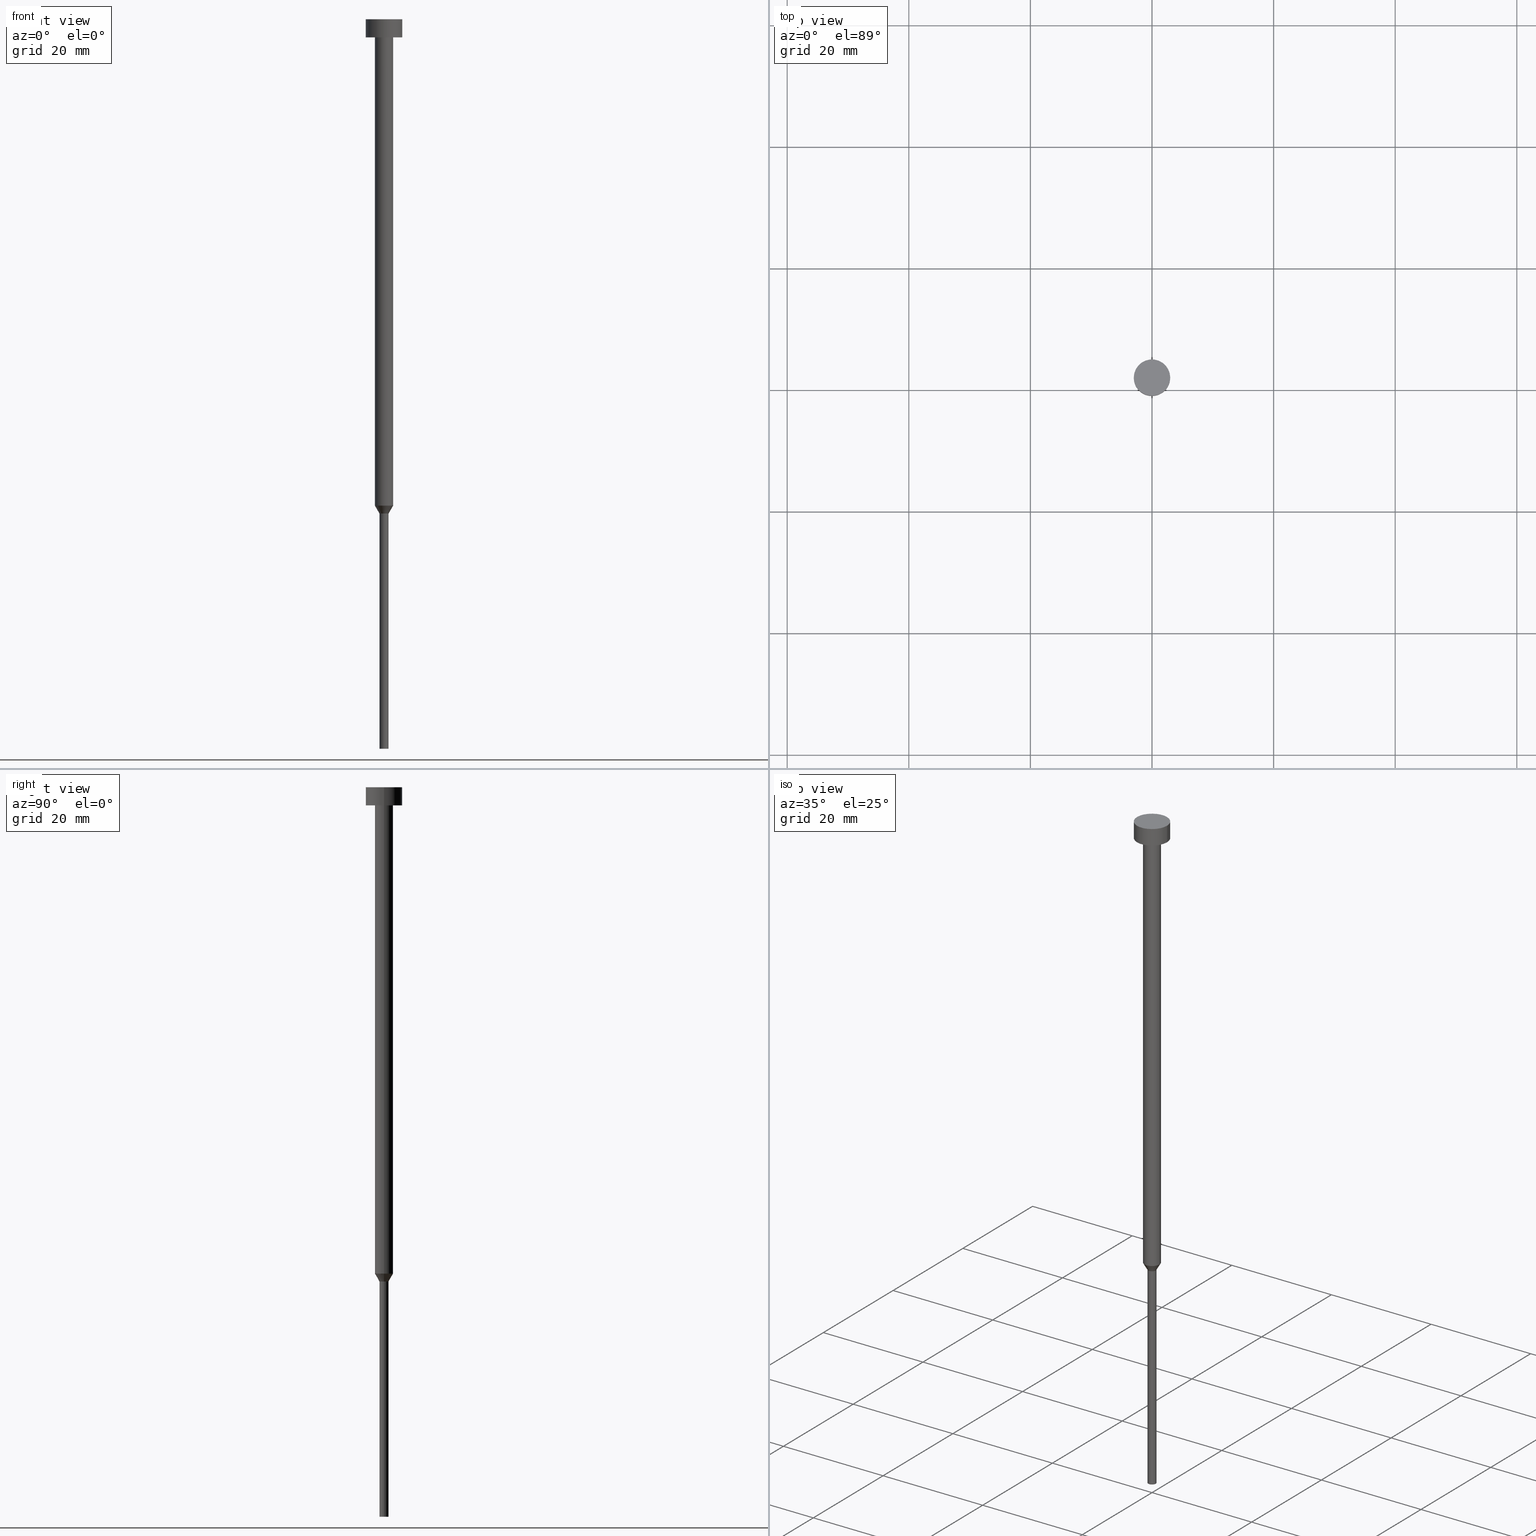
[diagram: canonical four-view strip — front | top / right | iso, engineering-drawing reading convention]
A machine part, canonical four-view strip (front | top / right | iso — engineering-drawing reading convention). The complete STEP part file that produces these views, byte-faithful:
ISO-10303-21;
HEADER;
FILE_DESCRIPTION (( 'STEP AP203' ),
    '1' );
FILE_NAME ('1d42.STEP',
    '2023-02-13T08:57:54',
    ( '' ),
    ( '' ),
    'SwSTEP 2.0',
    'SolidWorks 2019',
    '' );
FILE_SCHEMA (( 'CONFIG_CONTROL_DESIGN' ));
ENDSEC;

DATA;
#1 = CARTESIAN_POINT ( 'NONE',  ( 0.000000000000000000, 0.000000000000000000, -3.000000000000000444 ) ) ;
#2 = LINE ( 'NONE', #35, #24 ) ;
#3 = VERTEX_POINT ( 'NONE', #223 ) ;
#4 = SECURITY_CLASSIFICATION_LEVEL ( 'unclassified' ) ;
#5 = APPROVAL_ROLE ( '' ) ;
#6 = APPROVAL ( #274, 'NEUR�EN�' ) ;
#7 = ORIENTED_EDGE ( 'NONE', *, *, #354, .F. ) ;
#8 = DIRECTION ( 'NONE',  ( 1.000000000000000000, 0.000000000000000000, 0.000000000000000000 ) ) ;
#9 = CC_DESIGN_PERSON_AND_ORGANIZATION_ASSIGNMENT ( #13, #241, ( #173 ) ) ;
#10 = DATE_TIME_ROLE ( 'classification_date' ) ;
#11 = AXIS2_PLACEMENT_3D ( 'NONE', #31, #257, #231 ) ;
#12 = CARTESIAN_POINT ( 'NONE',  ( 3.000000000000000000, 0.000000000000000000, -3.000000000000000444 ) ) ;
#13 = PERSON_AND_ORGANIZATION ( #26, #205 ) ;
#14 = CARTESIAN_POINT ( 'NONE',  ( -1.500000000000000000, 1.836970198721029934E-16, -80.00000000000000000 ) ) ;
#15 = CIRCLE ( 'NONE', #55, 0.7500000000000000000 ) ;
#16 = ORIENTED_EDGE ( 'NONE', *, *, #131, .F. ) ;
#17 = ADVANCED_FACE ( 'NONE', ( #74, #189 ), #302, .T. ) ;
#18 = LOCAL_TIME ( 9, 57, 54.00000000000000000, #129 ) ;
#19 = APPROVAL_ROLE ( '' ) ;
#20 = EDGE_LOOP ( 'NONE', ( #216, #342, #344, #272 ) ) ;
#21 = SHAPE_DEFINITION_REPRESENTATION ( #229, #38 ) ;
#22 = EDGE_LOOP ( 'NONE', ( #348, #291, #244, #162 ) ) ;
#23 = ORIENTED_EDGE ( 'NONE', *, *, #301, .F. ) ;
#24 = VECTOR ( 'NONE', #176, 1000.000000000000000 ) ;
#25 = ORIENTED_EDGE ( 'NONE', *, *, #99, .F. ) ;
#26 = PERSON ( 'NEUR�EN�', 'NEUR�EN�', 'NEUR�EN�', ('NEUR�EN�'), ('NEUR�EN�'), ('NEUR�EN�') ) ;
#27 = AXIS2_PLACEMENT_3D ( 'NONE', #165, #278, #305 ) ;
#28 = ADVANCED_FACE ( 'NONE', ( #243 ), #52, .T. ) ;
#29 = PERSON_AND_ORGANIZATION ( #26, #205 ) ;
#30 = DIRECTION ( 'NONE',  ( 1.000000000000000000, 0.000000000000000000, 0.000000000000000000 ) ) ;
#31 = CARTESIAN_POINT ( 'NONE',  ( 0.000000000000000000, 0.000000000000000000, -120.0000000000000000 ) ) ;
#32 = AXIS2_PLACEMENT_3D ( 'NONE', #214, #121, #95 ) ;
#33 = CARTESIAN_POINT ( 'NONE',  ( -0.7500000000000000000, 9.184850993605149670E-17, -81.29903810567665801 ) ) ;
#34 = CIRCLE ( 'NONE', #112, 3.000000000000000000 ) ;
#35 = CARTESIAN_POINT ( 'NONE',  ( -3.000000000000000000, 3.673940397442059868E-16, 0.000000000000000000 ) ) ;
#36 = FACE_OUTER_BOUND ( 'NONE', #252, .T. ) ;
#37 = CARTESIAN_POINT ( 'NONE',  ( 0.000000000000000000, -3.000000000000000000, -3.000000000000000444 ) ) ;
#38 = ADVANCED_BREP_SHAPE_REPRESENTATION ( '1d42', ( #79, #41 ), #158 ) ;
#39 = DIRECTION ( 'NONE',  ( -0.000000000000000000, -0.000000000000000000, 1.000000000000000000 ) ) ;
#40 = CIRCLE ( 'NONE', #182, 1.500000000000000000 ) ;
#41 = AXIS2_PLACEMENT_3D ( 'NONE', #235, #115, #203 ) ;
#42 = PERSON_AND_ORGANIZATION ( #26, #205 ) ;
#43 = CARTESIAN_POINT ( 'NONE',  ( 1.500000000000000000, 0.000000000000000000, 0.000000000000000000 ) ) ;
#44 = APPROVAL_STATUS ( 'not_yet_approved' ) ;
#45 = ORIENTED_EDGE ( 'NONE', *, *, #191, .F. ) ;
#46 = CLOSED_SHELL ( 'NONE', ( #271, #28, #353, #202, #75, #125, #49, #213, #17, #53, #199 ) ) ;
#47 = DATE_TIME_ROLE ( 'creation_date' ) ;
#48 = PLANE ( 'NONE',  #27 ) ;
#49 = ADVANCED_FACE ( 'NONE', ( #139 ), #282, .T. ) ;
#50 = FACE_OUTER_BOUND ( 'NONE', #178, .T. ) ;
#51 = CONICAL_SURFACE ( 'NONE', #289, 1.500000000000000000, 0.5235987755983013692 ) ;
#52 = CYLINDRICAL_SURFACE ( 'NONE', #92, 1.500000000000000000 ) ;
#53 = ADVANCED_FACE ( 'NONE', ( #50 ), #78, .T. ) ;
#54 = DIRECTION ( 'NONE',  ( 1.000000000000000000, 0.000000000000000000, 0.000000000000000000 ) ) ;
#55 = AXIS2_PLACEMENT_3D ( 'NONE', #350, #349, #54 ) ;
#56 = PRODUCT_RELATED_PRODUCT_CATEGORY ( 'detail', '', ( #173 ) ) ;
#57 =( NAMED_UNIT ( * ) SI_UNIT ( $, .STERADIAN. ) SOLID_ANGLE_UNIT ( ) );
#58 = APPLICATION_PROTOCOL_DEFINITION ( 'international standard', 'config_control_design', 1994, #194 ) ;
#59 = CARTESIAN_POINT ( 'NONE',  ( 0.000000000000000000, 0.000000000000000000, 0.000000000000000000 ) ) ;
#60 = APPROVAL_DATE_TIME ( #319, #280 ) ;
#61 = DIRECTION ( 'NONE',  ( 1.000000000000000000, 0.000000000000000000, 0.000000000000000000 ) ) ;
#62 = CC_DESIGN_DATE_AND_TIME_ASSIGNMENT ( #303, #47, ( #308 ) ) ;
#63 = DIRECTION ( 'NONE',  ( -0.000000000000000000, -0.000000000000000000, 1.000000000000000000 ) ) ;
#64 = AXIS2_PLACEMENT_3D ( 'NONE', #179, #39, #71 ) ;
#65 = CYLINDRICAL_SURFACE ( 'NONE', #134, 3.000000000000000000 ) ;
#66 = DIRECTION ( 'NONE',  ( 1.000000000000000000, 0.000000000000000000, 0.000000000000000000 ) ) ;
#67 = DIRECTION ( 'NONE',  ( -0.000000000000000000, -0.000000000000000000, 1.000000000000000000 ) ) ;
#68 = EDGE_LOOP ( 'NONE', ( #126, #7 ) ) ;
#69 = CIRCLE ( 'NONE', #163, 0.7500000000000000000 ) ;
#70 = LOCAL_TIME ( 9, 57, 54.00000000000000000, #160 ) ;
#71 = DIRECTION ( 'NONE',  ( 1.000000000000000000, 0.000000000000000000, 0.000000000000000000 ) ) ;
#72 = CALENDAR_DATE ( 2023, 13, 2 ) ;
#73 = VERTEX_POINT ( 'NONE', #33 ) ;
#74 = FACE_BOUND ( 'NONE', #183, .T. ) ;
#75 = ADVANCED_FACE ( 'NONE', ( #169 ), #119, .T. ) ;
#76 = ORIENTED_EDGE ( 'NONE', *, *, #191, .T. ) ;
#77 = DIRECTION ( 'NONE',  ( -0.000000000000000000, -0.000000000000000000, 1.000000000000000000 ) ) ;
#78 = CYLINDRICAL_SURFACE ( 'NONE', #225, 3.000000000000000000 ) ;
#79 = MANIFOLD_SOLID_BREP ( 'Rotovat1', #46 ) ;
#80 = VECTOR ( 'NONE', #180, 1000.000000000000000 ) ;
#81 = CARTESIAN_POINT ( 'NONE',  ( 0.000000000000000000, 0.000000000000000000, -3.673940397442059868E-16 ) ) ;
#82 = EDGE_CURVE ( 'NONE', #246, #215, #312, .T. ) ;
#83 = LINE ( 'NONE', #233, #314 ) ;
#84 = AXIS2_PLACEMENT_3D ( 'NONE', #37, #155, #124 ) ;
#85 = LINE ( 'NONE', #266, #220 ) ;
#86 = AXIS2_PLACEMENT_3D ( 'NONE', #59, #261, #61 ) ;
#87 = APPLICATION_PROTOCOL_DEFINITION ( 'international standard', 'config_control_design', 1994, #200 ) ;
#88 = EDGE_CURVE ( 'NONE', #147, #101, #320, .T. ) ;
#89 = COORDINATED_UNIVERSAL_TIME_OFFSET ( 1, 0, .AHEAD. ) ;
#90 = APPROVAL ( #262, 'NEUR�EN�' ) ;
#91 = CARTESIAN_POINT ( 'NONE',  ( 1.500000000000000000, 0.000000000000000000, -80.00000000000000000 ) ) ;
#92 = AXIS2_PLACEMENT_3D ( 'NONE', #111, #168, #255 ) ;
#93 = DIRECTION ( 'NONE',  ( 1.000000000000000000, 0.000000000000000000, 0.000000000000000000 ) ) ;
#94 = AXIS2_PLACEMENT_3D ( 'NONE', #123, #242, #181 ) ;
#95 = DIRECTION ( 'NONE',  ( 1.000000000000000000, 0.000000000000000000, 0.000000000000000000 ) ) ;
#96 = CYLINDRICAL_SURFACE ( 'NONE', #296, 0.7500000000000000000 ) ;
#97 = UNCERTAINTY_MEASURE_WITH_UNIT (LENGTH_MEASURE( 1.000000000000000082E-05 ), #299, 'distance_accuracy_value', 'NONE');
#98 = ORIENTED_EDGE ( 'NONE', *, *, #153, .T. ) ;
#99 = EDGE_CURVE ( 'NONE', #215, #246, #219, .T. ) ;
#100 = VERTEX_POINT ( 'NONE', #14 ) ;
#101 = VERTEX_POINT ( 'NONE', #249 ) ;
#102 = ORIENTED_EDGE ( 'NONE', *, *, #336, .F. ) ;
#103 = LOCAL_TIME ( 9, 57, 54.00000000000000000, #89 ) ;
#104 = DIRECTION ( 'NONE',  ( 1.000000000000000000, 0.000000000000000000, 0.000000000000000000 ) ) ;
#105 = EDGE_CURVE ( 'NONE', #218, #246, #159, .T. ) ;
#106 = VERTEX_POINT ( 'NONE', #290 ) ;
#107 = DATE_AND_TIME ( #72, #149 ) ;
#108 = ORIENTED_EDGE ( 'NONE', *, *, #140, .F. ) ;
#109 = DIRECTION ( 'NONE',  ( -0.000000000000000000, -0.000000000000000000, 1.000000000000000000 ) ) ;
#110 = VECTOR ( 'NONE', #67, 1000.000000000000000 ) ;
#111 = CARTESIAN_POINT ( 'NONE',  ( 0.000000000000000000, 0.000000000000000000, 0.000000000000000000 ) ) ;
#112 = AXIS2_PLACEMENT_3D ( 'NONE', #175, #335, #93 ) ;
#113 = CARTESIAN_POINT ( 'NONE',  ( 1.500000000000000000, 0.000000000000000000, -80.00000000000000000 ) ) ;
#114 = DIRECTION ( 'NONE',  ( 1.000000000000000000, 0.000000000000000000, 0.000000000000000000 ) ) ;
#115 = DIRECTION ( 'NONE',  ( 0.000000000000000000, 0.000000000000000000, 1.000000000000000000 ) ) ;
#116 = DIRECTION ( 'NONE',  ( 1.000000000000000000, 0.000000000000000000, 0.000000000000000000 ) ) ;
#117 = DIRECTION ( 'NONE',  ( -0.5000000000000021094, 6.123233995736791920E-17, 0.8660254037844373753 ) ) ;
#118 = EDGE_CURVE ( 'NONE', #101, #297, #133, .T. ) ;
#119 = PLANE ( 'NONE',  #11 ) ;
#120 = APPROVAL_PERSON_ORGANIZATION ( #42, #6, #277 ) ;
#121 = DIRECTION ( 'NONE',  ( -0.000000000000000000, -0.000000000000000000, 1.000000000000000000 ) ) ;
#122 = DIRECTION ( 'NONE',  ( 1.000000000000000000, 0.000000000000000000, 0.000000000000000000 ) ) ;
#123 = CARTESIAN_POINT ( 'NONE',  ( 0.000000000000000000, 0.000000000000000000, -3.000000000000000444 ) ) ;
#124 = DIRECTION ( 'NONE',  ( -1.000000000000000000, 0.000000000000000000, -0.000000000000000000 ) ) ;
#125 = ADVANCED_FACE ( 'NONE', ( #338 ), #96, .T. ) ;
#126 = ORIENTED_EDGE ( 'NONE', *, *, #237, .F. ) ;
#127 = CC_DESIGN_SECURITY_CLASSIFICATION ( #263, ( #279 ) ) ;
#128 = ORIENTED_EDGE ( 'NONE', *, *, #309, .T. ) ;
#129 = COORDINATED_UNIVERSAL_TIME_OFFSET ( 1, 0, .AHEAD. ) ;
#130 = VERTEX_POINT ( 'NONE', #294 ) ;
#131 = EDGE_CURVE ( 'NONE', #100, #147, #170, .T. ) ;
#132 = DESIGN_CONTEXT ( 'detailed design', #194, 'design' ) ;
#133 = CIRCLE ( 'NONE', #94, 1.500000000000000000 ) ;
#134 = AXIS2_PLACEMENT_3D ( 'NONE', #292, #156, #116 ) ;
#135 = EDGE_LOOP ( 'NONE', ( #325, #234, #286, #45 ) ) ;
#136 = DIRECTION ( 'NONE',  ( 1.000000000000000000, 0.000000000000000000, 0.000000000000000000 ) ) ;
#137 = CARTESIAN_POINT ( 'NONE',  ( 0.000000000000000000, 0.000000000000000000, -80.00000000000000000 ) ) ;
#138 = DATE_AND_TIME ( #306, #326 ) ;
#139 = FACE_OUTER_BOUND ( 'NONE', #164, .T. ) ;
#140 = EDGE_CURVE ( 'NONE', #73, #106, #15, .T. ) ;
#141 = AXIS2_PLACEMENT_3D ( 'NONE', #157, #283, #254 ) ;
#142 = APPROVAL_PERSON_ORGANIZATION ( #172, #90, #5 ) ;
#143 = FACE_OUTER_BOUND ( 'NONE', #275, .T. ) ;
#144 = PERSON_AND_ORGANIZATION_ROLE ( 'design_supplier' ) ;
#145 = EDGE_CURVE ( 'NONE', #147, #100, #352, .T. ) ;
#146 = FACE_OUTER_BOUND ( 'NONE', #135, .T. ) ;
#147 = VERTEX_POINT ( 'NONE', #113 ) ;
#148 = AXIS2_PLACEMENT_3D ( 'NONE', #281, #221, #30 ) ;
#149 = LOCAL_TIME ( 9, 57, 54.00000000000000000, #185 ) ;
#150 = FACE_OUTER_BOUND ( 'NONE', #20, .T. ) ;
#151 = ORIENTED_EDGE ( 'NONE', *, *, #264, .T. ) ;
#152 = CARTESIAN_POINT ( 'NONE',  ( 0.000000000000000000, 0.000000000000000000, -80.00000000000000000 ) ) ;
#153 = EDGE_CURVE ( 'NONE', #3, #218, #332, .T. ) ;
#154 = CALENDAR_DATE ( 2023, 13, 2 ) ;
#155 = DIRECTION ( 'NONE',  ( 0.000000000000000000, 0.000000000000000000, -1.000000000000000000 ) ) ;
#156 = DIRECTION ( 'NONE',  ( -0.000000000000000000, -0.000000000000000000, 1.000000000000000000 ) ) ;
#157 = CARTESIAN_POINT ( 'NONE',  ( 0.000000000000000000, 0.000000000000000000, -80.00000000000000000 ) ) ;
#158 =( GEOMETRIC_REPRESENTATION_CONTEXT ( 3 ) GLOBAL_UNCERTAINTY_ASSIGNED_CONTEXT ( ( #97 ) ) GLOBAL_UNIT_ASSIGNED_CONTEXT ( ( #299, #343, #57 ) ) REPRESENTATION_CONTEXT ( 'NONE', 'WORKASPACE' ) );
#159 = LINE ( 'NONE', #210, #166 ) ;
#160 = COORDINATED_UNIVERSAL_TIME_OFFSET ( 1, 0, .AHEAD. ) ;
#161 = ORIENTED_EDGE ( 'NONE', *, *, #336, .T. ) ;
#162 = ORIENTED_EDGE ( 'NONE', *, *, #88, .F. ) ;
#163 = AXIS2_PLACEMENT_3D ( 'NONE', #230, #334, #208 ) ;
#164 = EDGE_LOOP ( 'NONE', ( #240, #209, #161, #16 ) ) ;
#165 = CARTESIAN_POINT ( 'NONE',  ( 0.000000000000000000, 0.000000000000000000, -1.836970198721029934E-16 ) ) ;
#166 = VECTOR ( 'NONE', #63, 1000.000000000000000 ) ;
#167 = CC_DESIGN_APPROVAL ( #6, ( #279 ) ) ;
#168 = DIRECTION ( 'NONE',  ( -0.000000000000000000, -0.000000000000000000, 1.000000000000000000 ) ) ;
#169 = FACE_OUTER_BOUND ( 'NONE', #68, .T. ) ;
#170 = CIRCLE ( 'NONE', #141, 1.500000000000000000 ) ;
#171 = AXIS2_PLACEMENT_3D ( 'NONE', #318, #226, #224 ) ;
#172 = PERSON_AND_ORGANIZATION ( #26, #205 ) ;
#173 = PRODUCT ( '1d42', '1d42', '', ( #310 ) ) ;
#174 = CARTESIAN_POINT ( 'NONE',  ( -3.000000000000000000, 3.673940397442059868E-16, -3.673940397442059868E-16 ) ) ;
#175 = CARTESIAN_POINT ( 'NONE',  ( 0.000000000000000000, 0.000000000000000000, -3.000000000000000444 ) ) ;
#176 = DIRECTION ( 'NONE',  ( -0.000000000000000000, -0.000000000000000000, 1.000000000000000000 ) ) ;
#177 = ORIENTED_EDGE ( 'NONE', *, *, #307, .F. ) ;
#178 = EDGE_LOOP ( 'NONE', ( #287, #98, #304, #25 ) ) ;
#179 = CARTESIAN_POINT ( 'NONE',  ( 0.000000000000000000, 0.000000000000000000, -3.673940397442059868E-16 ) ) ;
#180 = DIRECTION ( 'NONE',  ( -0.000000000000000000, -0.000000000000000000, 1.000000000000000000 ) ) ;
#181 = DIRECTION ( 'NONE',  ( 1.000000000000000000, 0.000000000000000000, 0.000000000000000000 ) ) ;
#182 = AXIS2_PLACEMENT_3D ( 'NONE', #259, #77, #104 ) ;
#183 = EDGE_LOOP ( 'NONE', ( #298, #76 ) ) ;
#184 = EDGE_CURVE ( 'NONE', #100, #297, #83, .T. ) ;
#185 = COORDINATED_UNIVERSAL_TIME_OFFSET ( 1, 0, .AHEAD. ) ;
#186 = ORIENTED_EDGE ( 'NONE', *, *, #301, .T. ) ;
#187 = ORIENTED_EDGE ( 'NONE', *, *, #145, .F. ) ;
#188 = PERSON_AND_ORGANIZATION ( #26, #205 ) ;
#189 = FACE_OUTER_BOUND ( 'NONE', #192, .T. ) ;
#190 = CALENDAR_DATE ( 2023, 13, 2 ) ;
#191 = EDGE_CURVE ( 'NONE', #297, #101, #40, .T. ) ;
#192 = EDGE_LOOP ( 'NONE', ( #177, #245 ) ) ;
#193 = FACE_OUTER_BOUND ( 'NONE', #251, .T. ) ;
#194 = APPLICATION_CONTEXT ( 'configuration controlled 3d designs of mechanical parts and assemblies' ) ;
#195 = CIRCLE ( 'NONE', #32, 0.7500000000000000000 ) ;
#196 = COORDINATED_UNIVERSAL_TIME_OFFSET ( 1, 0, .AHEAD. ) ;
#197 = CYLINDRICAL_SURFACE ( 'NONE', #148, 0.7500000000000000000 ) ;
#198 = CC_DESIGN_PERSON_AND_ORGANIZATION_ASSIGNMENT ( #29, #144, ( #279 ) ) ;
#199 = ADVANCED_FACE ( 'NONE', ( #193 ), #48, .T. ) ;
#200 = APPLICATION_CONTEXT ( 'configuration controlled 3d designs of mechanical parts and assemblies' ) ;
#201 = DIRECTION ( 'NONE',  ( -0.000000000000000000, -0.000000000000000000, 1.000000000000000000 ) ) ;
#202 = ADVANCED_FACE ( 'NONE', ( #143 ), #197, .T. ) ;
#203 = DIRECTION ( 'NONE',  ( 1.000000000000000000, 0.000000000000000000, 0.000000000000000000 ) ) ;
#204 = CARTESIAN_POINT ( 'NONE',  ( 3.000000000000000000, 0.000000000000000000, -3.673940397442059868E-16 ) ) ;
#205 = ORGANIZATION ( 'NEUR�EN�', 'NEUR�EN�', '' ) ;
#206 = VERTEX_POINT ( 'NONE', #256 ) ;
#207 = CALENDAR_DATE ( 2023, 13, 2 ) ;
#208 = DIRECTION ( 'NONE',  ( 1.000000000000000000, 0.000000000000000000, 0.000000000000000000 ) ) ;
#209 = ORIENTED_EDGE ( 'NONE', *, *, #140, .T. ) ;
#210 = CARTESIAN_POINT ( 'NONE',  ( 3.000000000000000000, 0.000000000000000000, 0.000000000000000000 ) ) ;
#211 = DATE_AND_TIME ( #154, #103 ) ;
#212 = EDGE_CURVE ( 'NONE', #106, #73, #69, .T. ) ;
#213 = ADVANCED_FACE ( 'NONE', ( #146 ), #337, .T. ) ;
#214 = CARTESIAN_POINT ( 'NONE',  ( 0.000000000000000000, 0.000000000000000000, -120.0000000000000000 ) ) ;
#215 = VERTEX_POINT ( 'NONE', #174 ) ;
#216 = ORIENTED_EDGE ( 'NONE', *, *, #307, .T. ) ;
#217 = CARTESIAN_POINT ( 'NONE',  ( 0.000000000000000000, 0.000000000000000000, 0.000000000000000000 ) ) ;
#218 = VERTEX_POINT ( 'NONE', #12 ) ;
#219 = CIRCLE ( 'NONE', #64, 3.000000000000000000 ) ;
#220 = VECTOR ( 'NONE', #239, 1000.000000000000000 ) ;
#221 = DIRECTION ( 'NONE',  ( -0.000000000000000000, -0.000000000000000000, 1.000000000000000000 ) ) ;
#222 = APPROVAL_DATE_TIME ( #138, #6 ) ;
#223 = CARTESIAN_POINT ( 'NONE',  ( -3.000000000000000000, 3.673940397442059868E-16, -3.000000000000000444 ) ) ;
#224 = DIRECTION ( 'NONE',  ( 1.000000000000000000, 0.000000000000000000, 0.000000000000000000 ) ) ;
#225 = AXIS2_PLACEMENT_3D ( 'NONE', #328, #313, #8 ) ;
#226 = DIRECTION ( 'NONE',  ( -0.000000000000000000, -0.000000000000000000, 1.000000000000000000 ) ) ;
#227 = PERSON_AND_ORGANIZATION ( #26, #205 ) ;
#228 = CARTESIAN_POINT ( 'NONE',  ( 0.000000000000000000, 0.000000000000000000, -80.00000000000000000 ) ) ;
#229 = PRODUCT_DEFINITION_SHAPE ( 'NONE', 'NONE',  #308 ) ;
#230 = CARTESIAN_POINT ( 'NONE',  ( 0.000000000000000000, 0.000000000000000000, -81.29903810567665801 ) ) ;
#231 = DIRECTION ( 'NONE',  ( -1.000000000000000000, 0.000000000000000000, -0.000000000000000000 ) ) ;
#232 = PERSON_AND_ORGANIZATION_ROLE ( 'creator' ) ;
#233 = CARTESIAN_POINT ( 'NONE',  ( -1.500000000000000000, 1.836970198721029934E-16, 0.000000000000000000 ) ) ;
#234 = ORIENTED_EDGE ( 'NONE', *, *, #131, .T. ) ;
#235 = CARTESIAN_POINT ( 'NONE',  ( 0.000000000000000000, 0.000000000000000000, 0.000000000000000000 ) ) ;
#236 = VECTOR ( 'NONE', #117, 1000.000000000000227 ) ;
#237 = EDGE_CURVE ( 'NONE', #206, #130, #195, .T. ) ;
#238 = CC_DESIGN_DATE_AND_TIME_ASSIGNMENT ( #211, #10, ( #263 ) ) ;
#239 = DIRECTION ( 'NONE',  ( -0.000000000000000000, -0.000000000000000000, 1.000000000000000000 ) ) ;
#240 = ORIENTED_EDGE ( 'NONE', *, *, #264, .F. ) ;
#241 = PERSON_AND_ORGANIZATION_ROLE ( 'design_owner' ) ;
#242 = DIRECTION ( 'NONE',  ( -0.000000000000000000, -0.000000000000000000, 1.000000000000000000 ) ) ;
#243 = FACE_OUTER_BOUND ( 'NONE', #22, .T. ) ;
#244 = ORIENTED_EDGE ( 'NONE', *, *, #118, .F. ) ;
#245 = ORIENTED_EDGE ( 'NONE', *, *, #153, .F. ) ;
#246 = VERTEX_POINT ( 'NONE', #204 ) ;
#247 = CC_DESIGN_PERSON_AND_ORGANIZATION_ASSIGNMENT ( #188, #232, ( #279 ) ) ;
#248 = EDGE_LOOP ( 'NONE', ( #23, #346, #128, #108 ) ) ;
#249 = CARTESIAN_POINT ( 'NONE',  ( 1.500000000000000000, 0.000000000000000000, -3.000000000000000444 ) ) ;
#250 = ORIENTED_EDGE ( 'NONE', *, *, #212, .F. ) ;
#251 = EDGE_LOOP ( 'NONE', ( #293, #265 ) ) ;
#252 = EDGE_LOOP ( 'NONE', ( #341, #151, #187, #102 ) ) ;
#253 = EDGE_CURVE ( 'NONE', #3, #215, #2, .T. ) ;
#254 = DIRECTION ( 'NONE',  ( 1.000000000000000000, 0.000000000000000000, 0.000000000000000000 ) ) ;
#255 = DIRECTION ( 'NONE',  ( 1.000000000000000000, 0.000000000000000000, 0.000000000000000000 ) ) ;
#256 = CARTESIAN_POINT ( 'NONE',  ( 0.7500000000000000000, 0.000000000000000000, -120.0000000000000000 ) ) ;
#257 = DIRECTION ( 'NONE',  ( 0.000000000000000000, 0.000000000000000000, -1.000000000000000000 ) ) ;
#258 = DIRECTION ( 'NONE',  ( 1.000000000000000000, 0.000000000000000000, 0.000000000000000000 ) ) ;
#259 = CARTESIAN_POINT ( 'NONE',  ( 0.000000000000000000, 0.000000000000000000, -3.000000000000000444 ) ) ;
#260 = ORIENTED_EDGE ( 'NONE', *, *, #237, .T. ) ;
#261 = DIRECTION ( 'NONE',  ( -0.000000000000000000, -0.000000000000000000, 1.000000000000000000 ) ) ;
#262 = APPROVAL_STATUS ( 'not_yet_approved' ) ;
#263 = SECURITY_CLASSIFICATION ( '', '', #4 ) ;
#264 = EDGE_CURVE ( 'NONE', #73, #100, #316, .T. ) ;
#265 = ORIENTED_EDGE ( 'NONE', *, *, #99, .T. ) ;
#266 = CARTESIAN_POINT ( 'NONE',  ( -0.7500000000000000000, 9.184850993605149670E-17, 0.000000000000000000 ) ) ;
#267 = DIRECTION ( 'NONE',  ( -0.000000000000000000, -0.000000000000000000, 1.000000000000000000 ) ) ;
#268 = APPROVAL_PERSON_ORGANIZATION ( #322, #280, #19 ) ;
#269 = PERSON_AND_ORGANIZATION_ROLE ( 'classification_officer' ) ;
#270 = AXIS2_PLACEMENT_3D ( 'NONE', #228, #109, #258 ) ;
#271 = ADVANCED_FACE ( 'NONE', ( #150 ), #65, .T. ) ;
#272 = ORIENTED_EDGE ( 'NONE', *, *, #105, .F. ) ;
#273 = CC_DESIGN_APPROVAL ( #280, ( #263 ) ) ;
#274 = APPROVAL_STATUS ( 'not_yet_approved' ) ;
#275 = EDGE_LOOP ( 'NONE', ( #260, #186, #250, #340 ) ) ;
#276 = AXIS2_PLACEMENT_3D ( 'NONE', #1, #201, #114 ) ;
#277 = APPROVAL_ROLE ( '' ) ;
#278 = DIRECTION ( 'NONE',  ( 0.000000000000000000, -0.000000000000000000, 1.000000000000000000 ) ) ;
#279 = PRODUCT_DEFINITION_FORMATION_WITH_SPECIFIED_SOURCE ( 'LIBOVOLN�', '', #173, .NOT_KNOWN. ) ;
#280 = APPROVAL ( #44, 'NEUR�EN�' ) ;
#281 = CARTESIAN_POINT ( 'NONE',  ( 0.000000000000000000, 0.000000000000000000, 0.000000000000000000 ) ) ;
#282 = CONICAL_SURFACE ( 'NONE', #327, 1.500000000000000000, 0.5235987755983013692 ) ;
#283 = DIRECTION ( 'NONE',  ( -0.000000000000000000, -0.000000000000000000, 1.000000000000000000 ) ) ;
#284 = CC_DESIGN_PERSON_AND_ORGANIZATION_ASSIGNMENT ( #227, #347, ( #308 ) ) ;
#285 = CARTESIAN_POINT ( 'NONE',  ( -1.500000000000000000, 1.836970198721029934E-16, -80.00000000000000000 ) ) ;
#286 = ORIENTED_EDGE ( 'NONE', *, *, #88, .T. ) ;
#287 = ORIENTED_EDGE ( 'NONE', *, *, #253, .F. ) ;
#288 = DIRECTION ( 'NONE',  ( 0.5000000000000021094, 0.000000000000000000, 0.8660254037844373753 ) ) ;
#289 = AXIS2_PLACEMENT_3D ( 'NONE', #152, #267, #122 ) ;
#290 = CARTESIAN_POINT ( 'NONE',  ( 0.7500000000000000000, 0.000000000000000000, -81.29903810567665801 ) ) ;
#291 = ORIENTED_EDGE ( 'NONE', *, *, #184, .T. ) ;
#292 = CARTESIAN_POINT ( 'NONE',  ( 0.000000000000000000, 0.000000000000000000, 0.000000000000000000 ) ) ;
#293 = ORIENTED_EDGE ( 'NONE', *, *, #82, .T. ) ;
#294 = CARTESIAN_POINT ( 'NONE',  ( -0.7500000000000000000, 9.184850993605149670E-17, -120.0000000000000000 ) ) ;
#295 = LINE ( 'NONE', #91, #315 ) ;
#296 = AXIS2_PLACEMENT_3D ( 'NONE', #217, #321, #66 ) ;
#297 = VERTEX_POINT ( 'NONE', #331 ) ;
#298 = ORIENTED_EDGE ( 'NONE', *, *, #118, .T. ) ;
#299 =( LENGTH_UNIT ( ) NAMED_UNIT ( * ) SI_UNIT ( .MILLI., .METRE. ) );
#300 = APPROVAL_DATE_TIME ( #107, #90 ) ;
#301 = EDGE_CURVE ( 'NONE', #130, #73, #85, .T. ) ;
#302 = PLANE ( 'NONE',  #84 ) ;
#303 = DATE_AND_TIME ( #190, #70 ) ;
#304 = ORIENTED_EDGE ( 'NONE', *, *, #105, .T. ) ;
#305 = DIRECTION ( 'NONE',  ( 1.000000000000000000, 0.000000000000000000, 0.000000000000000000 ) ) ;
#306 = CALENDAR_DATE ( 2023, 13, 2 ) ;
#307 = EDGE_CURVE ( 'NONE', #218, #3, #34, .T. ) ;
#308 = PRODUCT_DEFINITION ( 'NEZN�M�', '', #279, #132 ) ;
#309 = EDGE_CURVE ( 'NONE', #206, #106, #323, .T. ) ;
#310 = MECHANICAL_CONTEXT ( 'NONE', #200, 'mechanical' ) ;
#311 = DIRECTION ( 'NONE',  ( -0.000000000000000000, -0.000000000000000000, 1.000000000000000000 ) ) ;
#312 = CIRCLE ( 'NONE', #351, 3.000000000000000000 ) ;
#313 = DIRECTION ( 'NONE',  ( -0.000000000000000000, -0.000000000000000000, 1.000000000000000000 ) ) ;
#314 = VECTOR ( 'NONE', #330, 1000.000000000000000 ) ;
#315 = VECTOR ( 'NONE', #288, 1000.000000000000227 ) ;
#316 = LINE ( 'NONE', #285, #236 ) ;
#317 = PERSON_AND_ORGANIZATION ( #26, #205 ) ;
#318 = CARTESIAN_POINT ( 'NONE',  ( 0.000000000000000000, 0.000000000000000000, -120.0000000000000000 ) ) ;
#319 = DATE_AND_TIME ( #207, #18 ) ;
#320 = LINE ( 'NONE', #43, #110 ) ;
#321 = DIRECTION ( 'NONE',  ( -0.000000000000000000, -0.000000000000000000, 1.000000000000000000 ) ) ;
#322 = PERSON_AND_ORGANIZATION ( #26, #205 ) ;
#323 = LINE ( 'NONE', #339, #80 ) ;
#324 = DIRECTION ( 'NONE',  ( 1.000000000000000000, 0.000000000000000000, 0.000000000000000000 ) ) ;
#325 = ORIENTED_EDGE ( 'NONE', *, *, #184, .F. ) ;
#326 = LOCAL_TIME ( 9, 57, 54.00000000000000000, #196 ) ;
#327 = AXIS2_PLACEMENT_3D ( 'NONE', #137, #355, #136 ) ;
#328 = CARTESIAN_POINT ( 'NONE',  ( 0.000000000000000000, 0.000000000000000000, 0.000000000000000000 ) ) ;
#329 = CC_DESIGN_APPROVAL ( #90, ( #308 ) ) ;
#330 = DIRECTION ( 'NONE',  ( -0.000000000000000000, -0.000000000000000000, 1.000000000000000000 ) ) ;
#331 = CARTESIAN_POINT ( 'NONE',  ( -1.500000000000000000, 1.836970198721029934E-16, -3.000000000000000444 ) ) ;
#332 = CIRCLE ( 'NONE', #276, 3.000000000000000000 ) ;
#333 = CC_DESIGN_PERSON_AND_ORGANIZATION_ASSIGNMENT ( #317, #269, ( #263 ) ) ;
#334 = DIRECTION ( 'NONE',  ( -0.000000000000000000, -0.000000000000000000, 1.000000000000000000 ) ) ;
#335 = DIRECTION ( 'NONE',  ( -0.000000000000000000, -0.000000000000000000, 1.000000000000000000 ) ) ;
#336 = EDGE_CURVE ( 'NONE', #106, #147, #295, .T. ) ;
#337 = CYLINDRICAL_SURFACE ( 'NONE', #86, 1.500000000000000000 ) ;
#338 = FACE_OUTER_BOUND ( 'NONE', #248, .T. ) ;
#339 = CARTESIAN_POINT ( 'NONE',  ( 0.7500000000000000000, 0.000000000000000000, 0.000000000000000000 ) ) ;
#340 = ORIENTED_EDGE ( 'NONE', *, *, #309, .F. ) ;
#341 = ORIENTED_EDGE ( 'NONE', *, *, #212, .T. ) ;
#342 = ORIENTED_EDGE ( 'NONE', *, *, #253, .T. ) ;
#343 =( NAMED_UNIT ( * ) PLANE_ANGLE_UNIT ( ) SI_UNIT ( $, .RADIAN. ) );
#344 = ORIENTED_EDGE ( 'NONE', *, *, #82, .F. ) ;
#345 = CIRCLE ( 'NONE', #171, 0.7500000000000000000 ) ;
#346 = ORIENTED_EDGE ( 'NONE', *, *, #354, .T. ) ;
#347 = PERSON_AND_ORGANIZATION_ROLE ( 'creator' ) ;
#348 = ORIENTED_EDGE ( 'NONE', *, *, #145, .T. ) ;
#349 = DIRECTION ( 'NONE',  ( -0.000000000000000000, -0.000000000000000000, 1.000000000000000000 ) ) ;
#350 = CARTESIAN_POINT ( 'NONE',  ( 0.000000000000000000, 0.000000000000000000, -81.29903810567665801 ) ) ;
#351 = AXIS2_PLACEMENT_3D ( 'NONE', #81, #311, #324 ) ;
#352 = CIRCLE ( 'NONE', #270, 1.500000000000000000 ) ;
#353 = ADVANCED_FACE ( 'NONE', ( #36 ), #51, .T. ) ;
#354 = EDGE_CURVE ( 'NONE', #130, #206, #345, .T. ) ;
#355 = DIRECTION ( 'NONE',  ( -0.000000000000000000, -0.000000000000000000, 1.000000000000000000 ) ) ;
ENDSEC;
END-ISO-10303-21;
